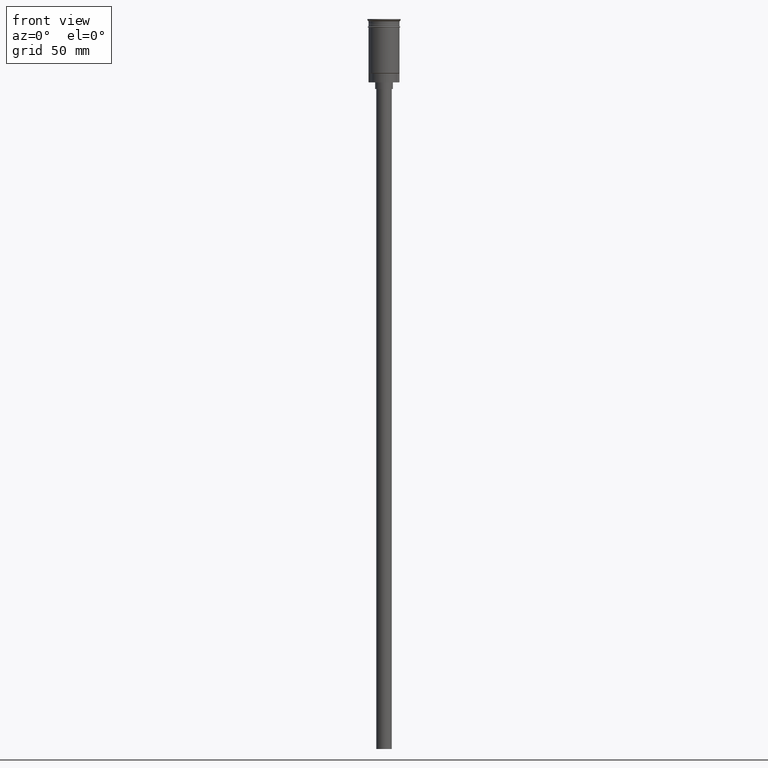
[diagram: clean part render]
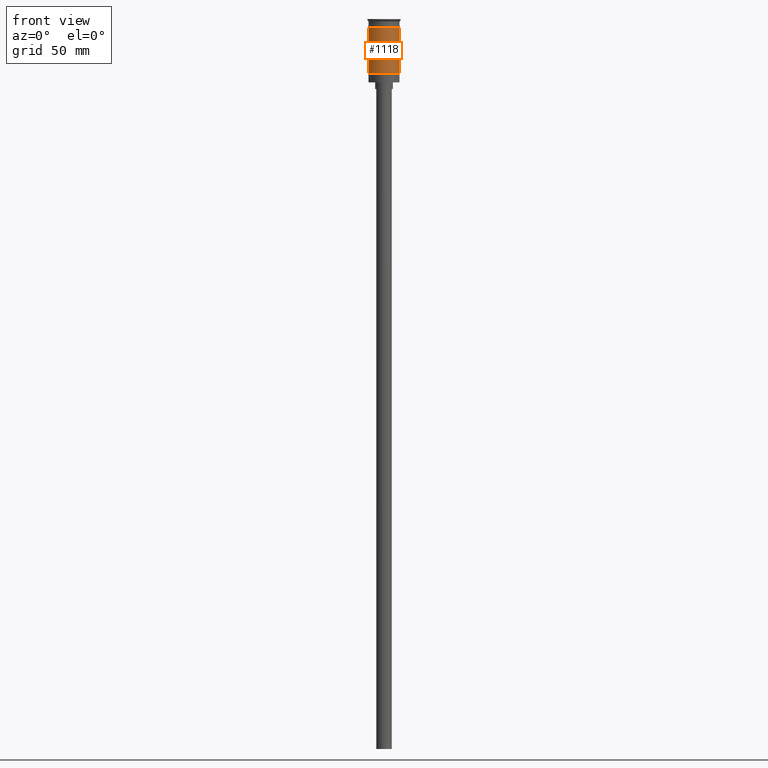
[diagram: same view with one face highlighted and labeled with its STEP entity id]
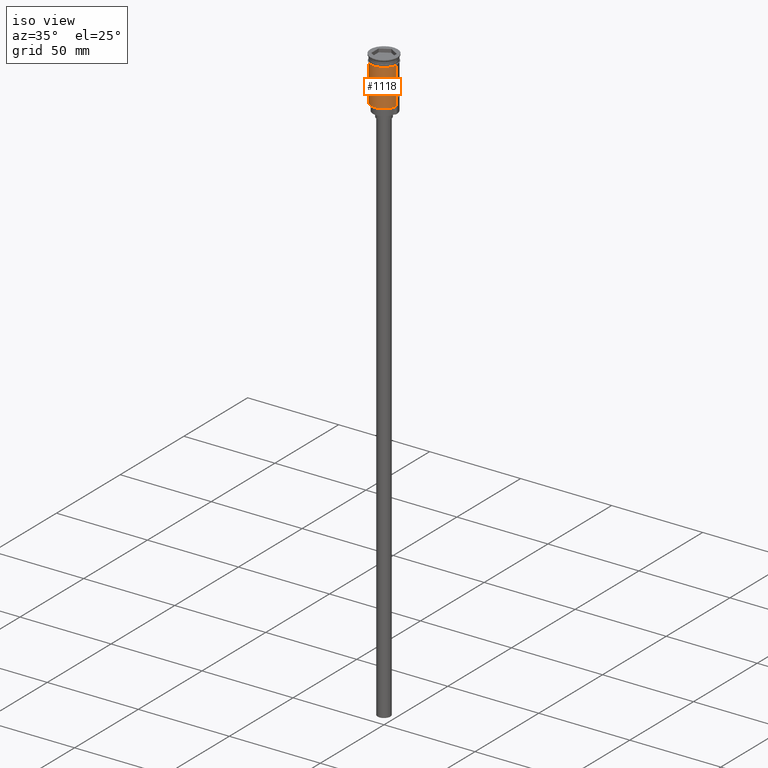
[diagram: same view with one face highlighted and labeled with its STEP entity id]
A machine part, front view. The second image highlights one B-rep face of the part: STEP entity #1118.
A second angle (iso view) of the same face is appended — the face is thin or edge-on in the first view.
In plain terms, the highlighted cylindrical surface (edge-blend (fillet) strip) has radius 7 mm, axis along (-0, -0, 1).
Its self-contained STEP definition (entity closure, byte-faithful):
#39 = CARTESIAN_POINT ( 'NONE',  ( 0.000000000000000000, 0.000000000000000000, -24.30000000000006466 ) ) ;
#121 = DIRECTION ( 'NONE',  ( -0.000000000000000000, -0.000000000000000000, 1.000000000000000000 ) ) ;
#134 = VECTOR ( 'NONE', #121, 1000.000000000000000 ) ;
#147 = VERTEX_POINT ( 'NONE', #1111 ) ;
#214 = DIRECTION ( 'NONE',  ( -0.000000000000000000, -0.000000000000000000, 1.000000000000000000 ) ) ;
#259 = AXIS2_PLACEMENT_3D ( 'NONE', #39, #424, #330 ) ;
#309 = AXIS2_PLACEMENT_3D ( 'NONE', #1307, #214, #577 ) ;
#330 = DIRECTION ( 'NONE',  ( -1.000000000000000000, 0.000000000000000000, 0.000000000000000000 ) ) ;
#386 = AXIS2_PLACEMENT_3D ( 'NONE', #1016, #1341, #1486 ) ;
#414 = VERTEX_POINT ( 'NONE', #533 ) ;
#424 = DIRECTION ( 'NONE',  ( -0.000000000000000000, -0.000000000000000000, 1.000000000000000000 ) ) ;
#442 = CARTESIAN_POINT ( 'NONE',  ( 6.999999999999996447, 0.000000000000000000, 0.000000000000000000 ) ) ;
#449 = ORIENTED_EDGE ( 'NONE', *, *, #872, .F. ) ;
#450 = EDGE_CURVE ( 'NONE', #1511, #596, #1096, .T. ) ;
#474 = LINE ( 'NONE', #1459, #1519 ) ;
#533 = CARTESIAN_POINT ( 'NONE',  ( 6.999999999999999112, 0.000000000000000000, -3.799999999999998490 ) ) ;
#577 = DIRECTION ( 'NONE',  ( 1.000000000000000000, 0.000000000000000000, 0.000000000000000000 ) ) ;
#596 = VERTEX_POINT ( 'NONE', #1275 ) ;
#604 = EDGE_LOOP ( 'NONE', ( #449, #1552, #898, #1033 ) ) ;
#778 = CIRCLE ( 'NONE', #309, 6.999999999999999112 ) ;
#872 = EDGE_CURVE ( 'NONE', #1511, #147, #474, .T. ) ;
#894 = CYLINDRICAL_SURFACE ( 'NONE', #386, 6.999999999999996447 ) ;
#898 = ORIENTED_EDGE ( 'NONE', *, *, #1557, .T. ) ;
#993 = EDGE_CURVE ( 'NONE', #147, #414, #778, .T. ) ;
#1016 = CARTESIAN_POINT ( 'NONE',  ( 0.000000000000000000, 0.000000000000000000, 0.000000000000000000 ) ) ;
#1033 = ORIENTED_EDGE ( 'NONE', *, *, #993, .F. ) ;
#1096 = CIRCLE ( 'NONE', #259, 6.999999999999996447 ) ;
#1111 = CARTESIAN_POINT ( 'NONE',  ( -7.000000000000000000, 8.572527594031472204E-16, -3.799999999999998490 ) ) ;
#1118 = ADVANCED_FACE ( 'NONE', ( #1364 ), #894, .T. ) ;
#1275 = CARTESIAN_POINT ( 'NONE',  ( 6.999999999999996447, 8.572527594031468259E-16, -24.30000000000006466 ) ) ;
#1290 = LINE ( 'NONE', #442, #134 ) ;
#1307 = CARTESIAN_POINT ( 'NONE',  ( 0.000000000000000000, 0.000000000000000000, -3.799999999999998490 ) ) ;
#1341 = DIRECTION ( 'NONE',  ( -0.000000000000000000, -0.000000000000000000, 1.000000000000000000 ) ) ;
#1364 = FACE_OUTER_BOUND ( 'NONE', #604, .T. ) ;
#1434 = CARTESIAN_POINT ( 'NONE',  ( -6.999999999999993783, 0.000000000000000000, -24.30000000000006466 ) ) ;
#1459 = CARTESIAN_POINT ( 'NONE',  ( -6.999999999999996447, 8.572527594031468259E-16, 0.000000000000000000 ) ) ;
#1486 = DIRECTION ( 'NONE',  ( 1.000000000000000000, 0.000000000000000000, 0.000000000000000000 ) ) ;
#1511 = VERTEX_POINT ( 'NONE', #1434 ) ;
#1519 = VECTOR ( 'NONE', #1572, 1000.000000000000000 ) ;
#1552 = ORIENTED_EDGE ( 'NONE', *, *, #450, .T. ) ;
#1557 = EDGE_CURVE ( 'NONE', #596, #414, #1290, .T. ) ;
#1572 = DIRECTION ( 'NONE',  ( -0.000000000000000000, -0.000000000000000000, 1.000000000000000000 ) ) ;